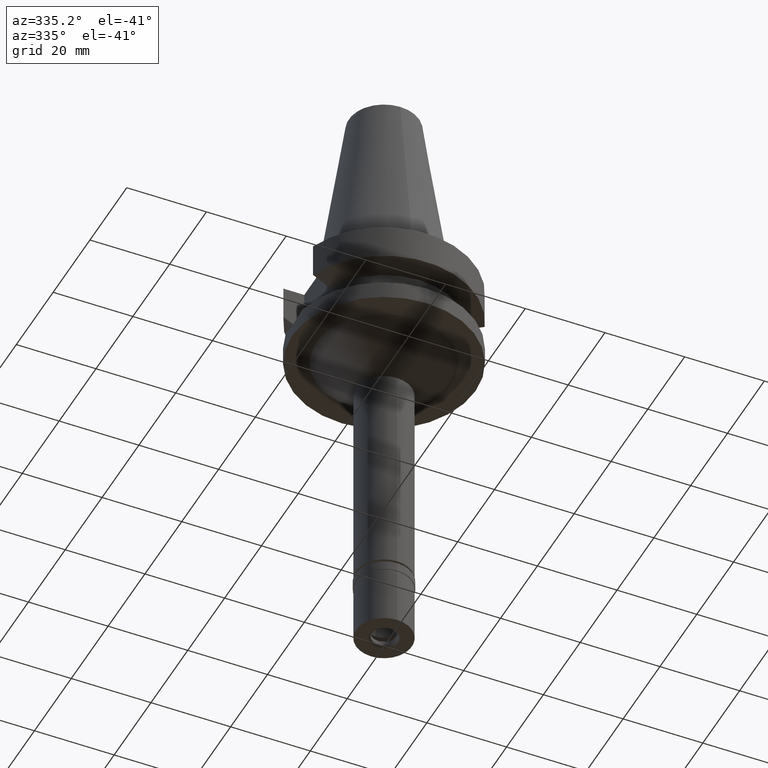
[diagram: clean part render]
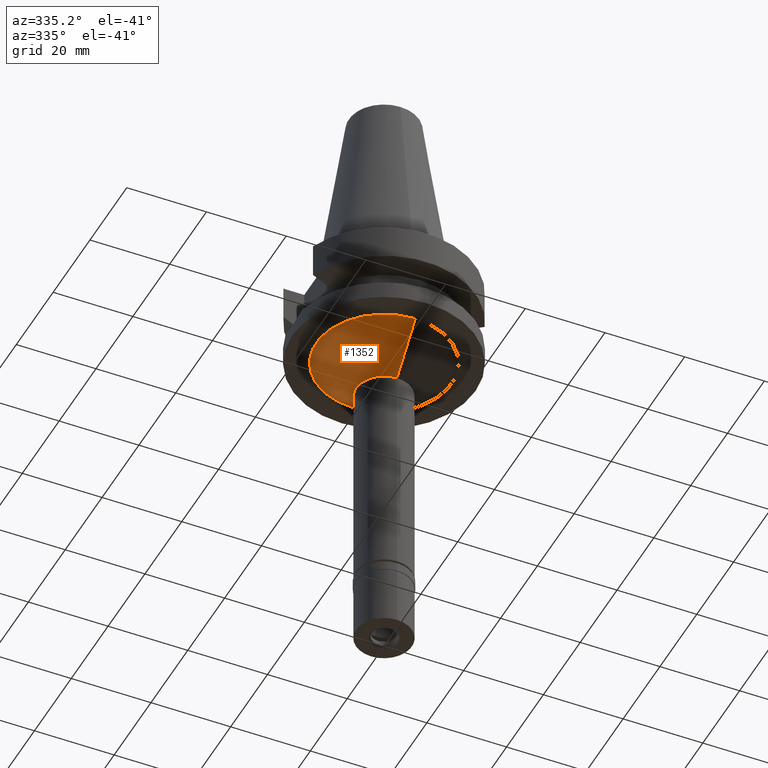
[diagram: same view with one face highlighted and labeled with its STEP entity id]
A machine part, auxiliary view. The second image highlights one B-rep face of the part: STEP entity #1352.
In plain terms, the highlighted conical surface has half-angle 45 deg.
Its self-contained STEP definition (entity closure, byte-faithful):
#61 = CARTESIAN_POINT ( 'NONE',  ( 0.0000000000000000000, 0.0000000000000000000, -32.00000000000000000 ) ) ;
#62 = DIRECTION ( 'NONE',  ( 0.0000000000000000000, 0.0000000000000000000, -1.000000000000000000 ) ) ;
#149 = CARTESIAN_POINT ( 'NONE',  ( 0.0000000000000000000, -7.001791732785999756, -32.00000000000000000 ) ) ;
#251 = FACE_OUTER_BOUND ( 'NONE', #2481, .T. ) ;
#473 = DIRECTION ( 'NONE',  ( 0.0000000000000000000, -1.000000000000000000, 0.0000000000000000000 ) ) ;
#499 = AXIS2_PLACEMENT_3D ( 'NONE', #2046, #923, #1846 ) ;
#593 = AXIS2_PLACEMENT_3D ( 'NONE', #61, #1587, #473 ) ;
#601 = EDGE_CURVE ( 'NONE', #2117, #2691, #1615, .T. ) ;
#865 = ORIENTED_EDGE ( 'NONE', *, *, #601, .F. ) ;
#881 = DIRECTION ( 'NONE',  ( 0.0000000000000000000, 0.7071067811865969777, -0.7071067811864980568 ) ) ;
#923 = DIRECTION ( 'NONE',  ( 0.0000000000000000000, 0.0000000000000000000, 1.000000000000000000 ) ) ;
#956 = CARTESIAN_POINT ( 'NONE',  ( 0.0000000000000000000, 17.00179173279000011, -22.00000000000000000 ) ) ;
#1014 = ORIENTED_EDGE ( 'NONE', *, *, #2680, .T. ) ;
#1160 = CARTESIAN_POINT ( 'NONE',  ( 0.0000000000000000000, 0.0000000000000000000, -22.00000000000000000 ) ) ;
#1267 = AXIS2_PLACEMENT_3D ( 'NONE', #1160, #62, #2154 ) ;
#1346 = DIRECTION ( 'NONE',  ( 0.0000000000000000000, -0.7071067811865969777, -0.7071067811864980568 ) ) ;
#1352 = ADVANCED_FACE ( 'NONE', ( #251 ), #2696, .T. ) ;
#1567 = CARTESIAN_POINT ( 'NONE',  ( 0.0000000000000000000, 7.001791732785999756, -32.00000000000000000 ) ) ;
#1587 = DIRECTION ( 'NONE',  ( 0.0000000000000000000, 0.0000000000000000000, -1.000000000000000000 ) ) ;
#1602 = ORIENTED_EDGE ( 'NONE', *, *, #2285, .F. ) ;
#1615 = LINE ( 'NONE', #2074, #2300 ) ;
#1723 = ORIENTED_EDGE ( 'NONE', *, *, #1985, .T. ) ;
#1737 = CARTESIAN_POINT ( 'NONE',  ( 0.0000000000000000000, 17.00179173279000011, -22.00000000000000000 ) ) ;
#1833 = VERTEX_POINT ( 'NONE', #1567 ) ;
#1846 = DIRECTION ( 'NONE',  ( 0.0000000000000000000, 1.000000000000000000, 0.0000000000000000000 ) ) ;
#1985 = EDGE_CURVE ( 'NONE', #2751, #1833, #2644, .T. ) ;
#2046 = CARTESIAN_POINT ( 'NONE',  ( 0.0000000000000000000, 0.0000000000000000000, -27.00000000000000000 ) ) ;
#2074 = CARTESIAN_POINT ( 'NONE',  ( 0.0000000000000000000, -17.00179173279000011, -22.00000000000000000 ) ) ;
#2117 = VERTEX_POINT ( 'NONE', #2286 ) ;
#2154 = DIRECTION ( 'NONE',  ( 0.0000000000000000000, -1.000000000000000000, 0.0000000000000000000 ) ) ;
#2285 = EDGE_CURVE ( 'NONE', #2691, #1833, #2432, .T. ) ;
#2286 = CARTESIAN_POINT ( 'NONE',  ( 0.0000000000000000000, -17.00179173279000011, -22.00000000000000000 ) ) ;
#2300 = VECTOR ( 'NONE', #881, 1000.000000000000000 ) ;
#2329 = VECTOR ( 'NONE', #1346, 1000.000000000000000 ) ;
#2432 = CIRCLE ( 'NONE', #593, 7.001791732786999845 ) ;
#2481 = EDGE_LOOP ( 'NONE', ( #1602, #865, #1014, #1723 ) ) ;
#2529 = CIRCLE ( 'NONE', #1267, 17.00179173279000011 ) ;
#2644 = LINE ( 'NONE', #1737, #2329 ) ;
#2680 = EDGE_CURVE ( 'NONE', #2117, #2751, #2529, .T. ) ;
#2691 = VERTEX_POINT ( 'NONE', #149 ) ;
#2696 = CONICAL_SURFACE ( 'NONE', #499, 12.00179173278999833, 0.7853981633972997312 ) ;
#2751 = VERTEX_POINT ( 'NONE', #956 ) ;